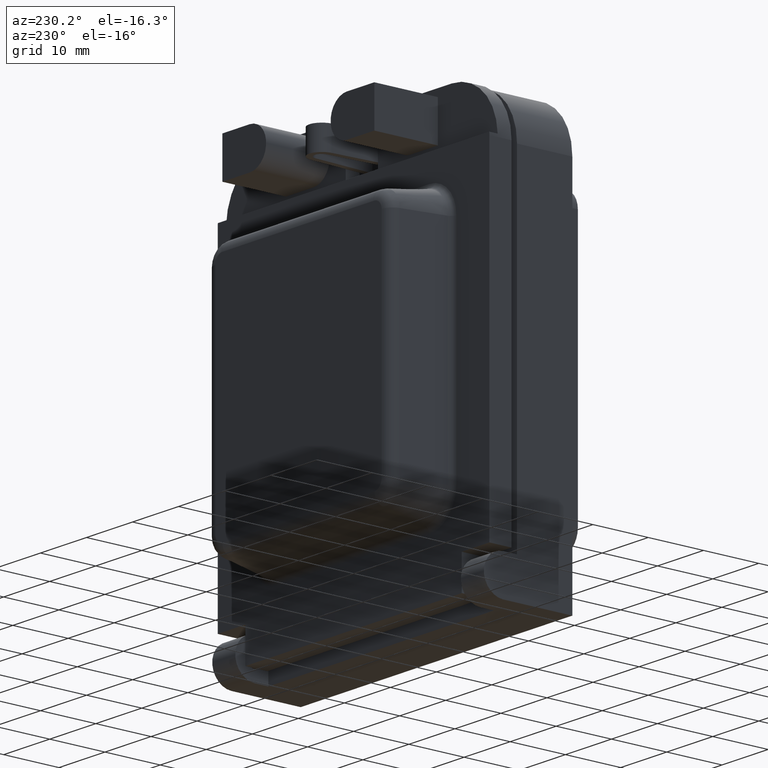
[diagram: clean part render]
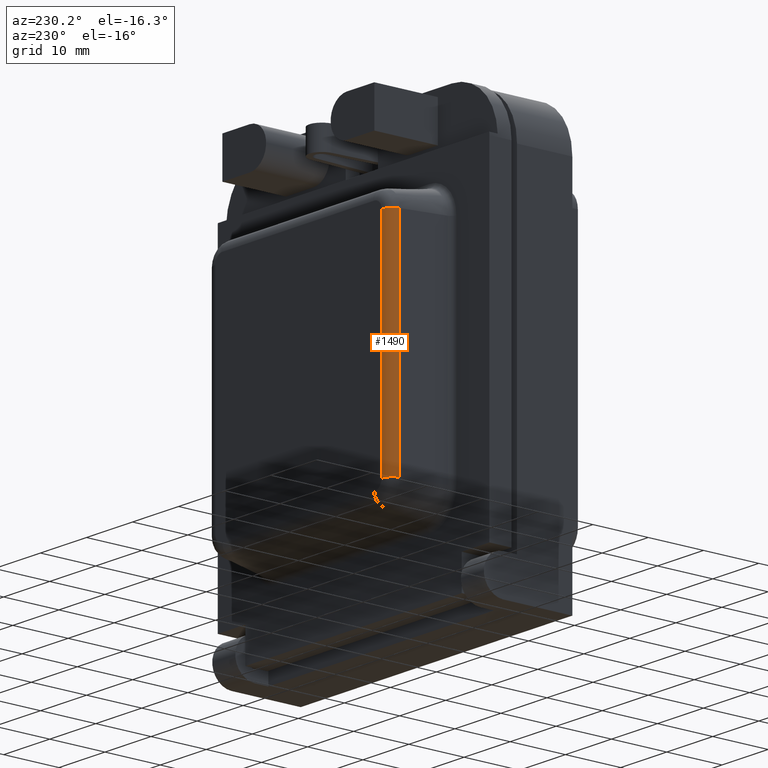
[diagram: same view with one face highlighted and labeled with its STEP entity id]
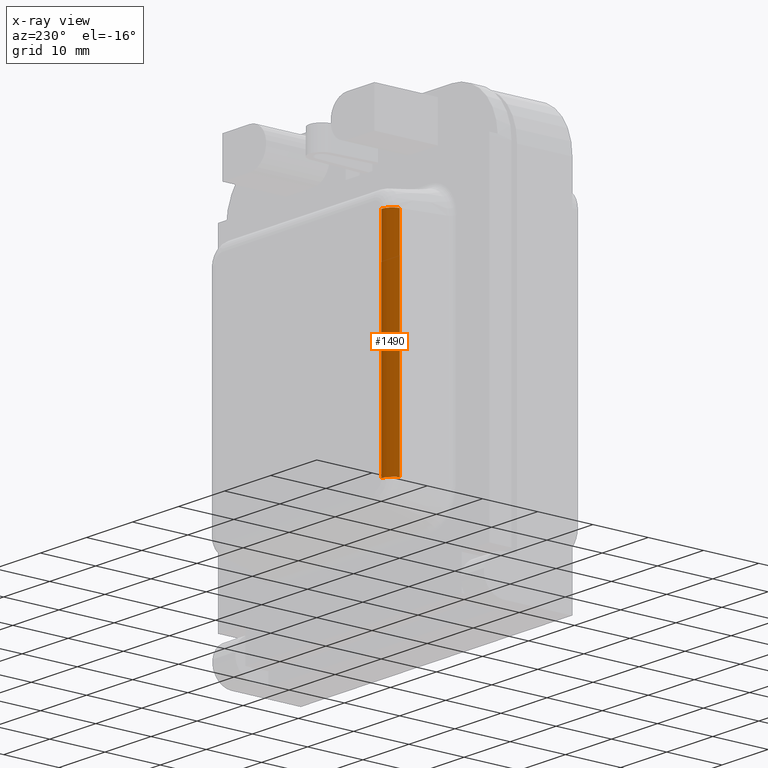
[diagram: x-ray of the same camera — body ghosted, the highlighted face saturated]
A machine part, auxiliary view. The second image highlights one B-rep face of the part: STEP entity #1490.
The next image is the same camera in x-ray: the body ghosted, the highlighted face saturated — about 0% of this face is hidden behind the body in this view.
In plain terms, the highlighted cylindrical surface (edge-blend (fillet) strip) has radius 2 mm, axis along (0, -0, 1).
Its self-contained STEP definition (entity closure, byte-faithful):
#1368 = VERTEX_POINT ( 'NONE', #5508 ) ;
#1370 = EDGE_CURVE ( 'NONE', #1368, #1385, #5506, .T. ) ;
#1385 = VERTEX_POINT ( 'NONE', #5554 ) ;
#1477 = VERTEX_POINT ( 'NONE', #5863 ) ;
#1479 = EDGE_CURVE ( 'NONE', #1477, #1480, #5919, .T. ) ;
#1480 = VERTEX_POINT ( 'NONE', #5915 ) ;
#1490 = ADVANCED_FACE ( 'NONE', ( #5898 ), #5942, .T. ) ;
#1491 = EDGE_LOOP ( 'NONE', ( #1492, #1493, #1494, #1496 ) ) ;
#1492 = ORIENTED_EDGE ( 'NONE', *, *, #1506, .T. ) ;
#1493 = ORIENTED_EDGE ( 'NONE', *, *, #1479, .F. ) ;
#1494 = ORIENTED_EDGE ( 'NONE', *, *, #1495, .F. ) ;
#1495 = EDGE_CURVE ( 'NONE', #1385, #1477, #5941, .T. ) ;
#1496 = ORIENTED_EDGE ( 'NONE', *, *, #1370, .F. ) ;
#1506 = EDGE_CURVE ( 'NONE', #1368, #1480, #5996, .T. ) ;
#5503 = DIRECTION ( 'NONE',  ( -1.779203565104417600E-016, -9.080617746865101200E-035, -1.000000000000000000 ) ) ;
#5504 = VECTOR ( 'NONE', #5503, 1000.000000000000000 ) ;
#5505 = CARTESIAN_POINT ( 'NONE',  ( -20.02814643658520300, 23.34729635533386000, -20.44999999999999600 ) ) ;
#5506 = LINE ( 'NONE', #5505, #5504 ) ;
#5508 = CARTESIAN_POINT ( 'NONE',  ( -20.02814643658520000, 23.34729635533386000, 18.55000000000000400 ) ) ;
#5554 = CARTESIAN_POINT ( 'NONE',  ( -20.02814643658520300, 23.34729635533385700, -20.44999999999999600 ) ) ;
#5863 = CARTESIAN_POINT ( 'NONE',  ( -18.05853093056078500, 25.00000000000000000, -20.44999999999999900 ) ) ;
#5898 = FACE_OUTER_BOUND ( 'NONE', #1491, .T. ) ;
#5915 = CARTESIAN_POINT ( 'NONE',  ( -18.05853093056077800, 25.00000000000000000, 18.55000000000000100 ) ) ;
#5916 = DIRECTION ( 'NONE',  ( 1.779203565104417600E-016, -0.0000000000000000000, 1.000000000000000000 ) ) ;
#5917 = VECTOR ( 'NONE', #5916, 1000.000000000000000 ) ;
#5918 = CARTESIAN_POINT ( 'NONE',  ( -18.05853093056077800, 25.00000000000000000, 18.55000000000000400 ) ) ;
#5919 = LINE ( 'NONE', #5918, #5917 ) ;
#5932 = DIRECTION ( 'NONE',  ( 0.0000000000000000000, 1.000000000000000000, -1.734723475976805500E-015 ) ) ;
#5933 = DIRECTION ( 'NONE',  ( -3.058785528830826100E-016, -1.734723475976805700E-015, -1.000000000000000000 ) ) ;
#5934 = CARTESIAN_POINT ( 'NONE',  ( -18.05853093056078500, 23.00000000000000000, -20.44999999999999600 ) ) ;
#5935 = AXIS2_PLACEMENT_3D ( 'NONE', #5934, #5933, #5932 ) ;
#5937 = DIRECTION ( 'NONE',  ( 1.000000000000000000, 0.0000000000000000000, 0.0000000000000000000 ) ) ;
#5938 = DIRECTION ( 'NONE',  ( 1.779203565104417600E-016, -0.0000000000000000000, 1.000000000000000000 ) ) ;
#5939 = CARTESIAN_POINT ( 'NONE',  ( -18.05853093056078500, 23.00000000000000000, -20.44999999999999600 ) ) ;
#5940 = AXIS2_PLACEMENT_3D ( 'NONE', #5939, #5938, #5937 ) ;
#5941 = CIRCLE ( 'NONE', #5935, 2.000000000000001800 ) ;
#5942 = CYLINDRICAL_SURFACE ( 'NONE', #5940, 2.000000000000001800 ) ;
#5987 = DIRECTION ( 'NONE',  ( -1.000000000000000000, 0.0000000000000000000, 1.734723475976805500E-015 ) ) ;
#5988 = DIRECTION ( 'NONE',  ( -1.761484381769793100E-015, 3.055688309622549800E-030, -1.000000000000000000 ) ) ;
#5989 = CARTESIAN_POINT ( 'NONE',  ( -18.05853093056078500, 23.00000000000000000, 18.55000000000000100 ) ) ;
#5990 = AXIS2_PLACEMENT_3D ( 'NONE', #5989, #5988, #5987 ) ;
#5996 = CIRCLE ( 'NONE', #5990, 2.000000000000001800 ) ;